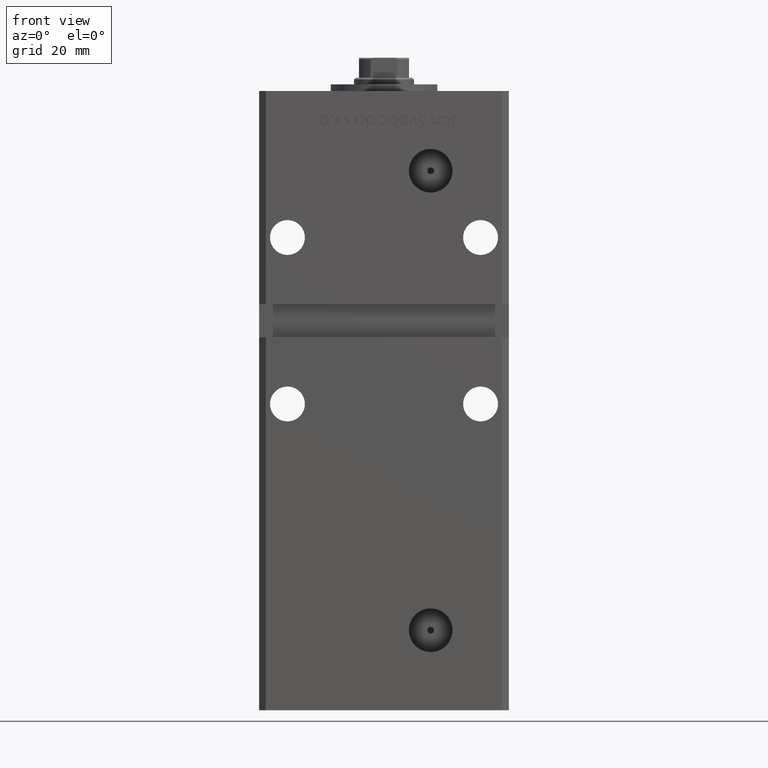
[diagram: clean part render]
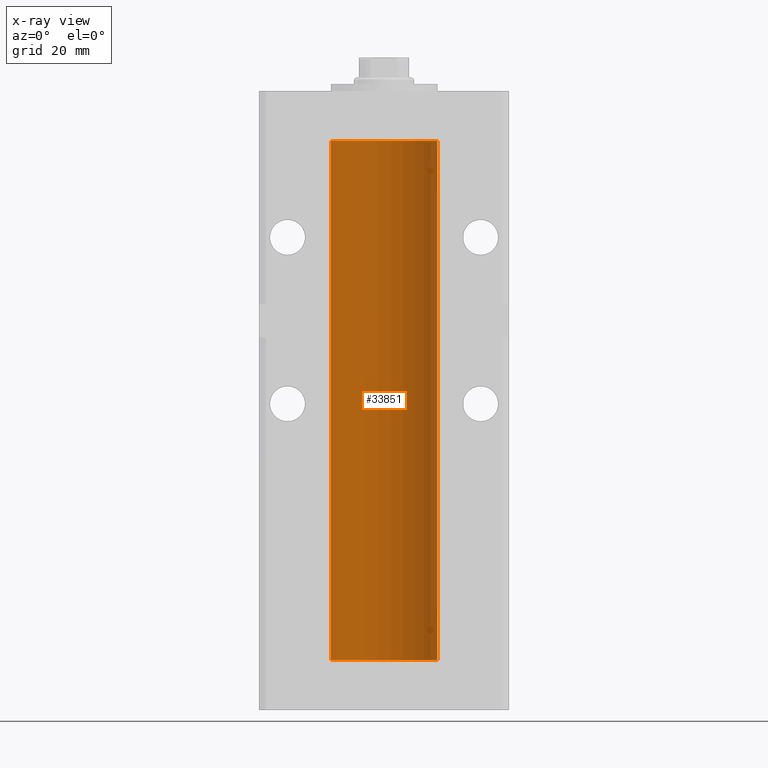
[diagram: x-ray — body ghosted, one internal face saturated and labeled with its STEP entity id]
A machine part, front view, then the same camera in x-ray: the body is ghosted and one INTERNAL B-rep face — a face not visible from any outside direction — is saturated and labeled: STEP entity #33851.
In plain terms, the highlighted cylindrical surface (partial cylindrical patch) has radius 16 mm, axis along (-0, -0, -1).
Its self-contained STEP definition (entity closure, byte-faithful):
#822 = ORIENTED_EDGE ( 'NONE', *, *, #46723, .T. ) ;
#871 = CIRCLE ( 'NONE', #30950, 16.00000000000000000 ) ;
#1381 = ORIENTED_EDGE ( 'NONE', *, *, #25730, .F. ) ;
#1564 = CARTESIAN_POINT ( 'NONE',  ( 0.000000000000000000, 0.000000000000000000, 156.0000000000000000 ) ) ;
#4519 = EDGE_LOOP ( 'NONE', ( #1381, #822, #22322, #4567 ) ) ;
#4567 = ORIENTED_EDGE ( 'NONE', *, *, #38587, .F. ) ;
#5629 = VERTEX_POINT ( 'NONE', #52095 ) ;
#6915 = DIRECTION ( 'NONE',  ( 1.000000000000000000, 0.000000000000000000, 0.000000000000000000 ) ) ;
#10921 = AXIS2_PLACEMENT_3D ( 'NONE', #36600, #52994, #48977 ) ;
#17702 = VERTEX_POINT ( 'NONE', #47608 ) ;
#18020 = DIRECTION ( 'NONE',  ( -0.000000000000000000, 0.000000000000000000, 1.000000000000000000 ) ) ;
#22256 = CIRCLE ( 'NONE', #41082, 16.00000000000000000 ) ;
#22322 = ORIENTED_EDGE ( 'NONE', *, *, #27123, .T. ) ;
#23739 = VERTEX_POINT ( 'NONE', #26802 ) ;
#25592 = FACE_OUTER_BOUND ( 'NONE', #4519, .T. ) ;
#25730 = EDGE_CURVE ( 'NONE', #17702, #5629, #26093, .T. ) ;
#25966 = CARTESIAN_POINT ( 'NONE',  ( -16.00000000000000000, 0.000000000000000000, 156.0000000000000000 ) ) ;
#26093 = LINE ( 'NONE', #34397, #28830 ) ;
#26263 = VERTEX_POINT ( 'NONE', #25966 ) ;
#26802 = CARTESIAN_POINT ( 'NONE',  ( -16.00000000000000000, 0.000000000000000000, 0.000000000000000000 ) ) ;
#27123 = EDGE_CURVE ( 'NONE', #26263, #23739, #50407, .T. ) ;
#28830 = VECTOR ( 'NONE', #34671, 1000.000000000000000 ) ;
#30950 = AXIS2_PLACEMENT_3D ( 'NONE', #1564, #18020, #50769 ) ;
#33851 = ADVANCED_FACE ( 'NONE', ( #25592 ), #41970, .F. ) ;
#34397 = CARTESIAN_POINT ( 'NONE',  ( 16.00000000000000000, 1.959434878635765131E-15, 156.0000000000000000 ) ) ;
#34671 = DIRECTION ( 'NONE',  ( -0.000000000000000000, -0.000000000000000000, -1.000000000000000000 ) ) ;
#36600 = CARTESIAN_POINT ( 'NONE',  ( 0.000000000000000000, 0.000000000000000000, 156.0000000000000000 ) ) ;
#38587 = EDGE_CURVE ( 'NONE', #5629, #23739, #22256, .T. ) ;
#40751 = VECTOR ( 'NONE', #49875, 1000.000000000000000 ) ;
#41082 = AXIS2_PLACEMENT_3D ( 'NONE', #43475, #51536, #6915 ) ;
#41970 = CYLINDRICAL_SURFACE ( 'NONE', #10921, 16.00000000000000000 ) ;
#43475 = CARTESIAN_POINT ( 'NONE',  ( 0.000000000000000000, 0.000000000000000000, 0.000000000000000000 ) ) ;
#46723 = EDGE_CURVE ( 'NONE', #17702, #26263, #871, .T. ) ;
#47608 = CARTESIAN_POINT ( 'NONE',  ( 16.00000000000000000, 1.959434878635765131E-15, 156.0000000000000000 ) ) ;
#48977 = DIRECTION ( 'NONE',  ( -1.000000000000000000, 0.000000000000000000, 0.000000000000000000 ) ) ;
#49875 = DIRECTION ( 'NONE',  ( -0.000000000000000000, -0.000000000000000000, -1.000000000000000000 ) ) ;
#50407 = LINE ( 'NONE', #50676, #40751 ) ;
#50676 = CARTESIAN_POINT ( 'NONE',  ( -16.00000000000000000, 0.000000000000000000, 156.0000000000000000 ) ) ;
#50769 = DIRECTION ( 'NONE',  ( 1.000000000000000000, 0.000000000000000000, 0.000000000000000000 ) ) ;
#51536 = DIRECTION ( 'NONE',  ( -0.000000000000000000, 0.000000000000000000, 1.000000000000000000 ) ) ;
#52095 = CARTESIAN_POINT ( 'NONE',  ( 16.00000000000000000, 1.959434878635765131E-15, 0.000000000000000000 ) ) ;
#52994 = DIRECTION ( 'NONE',  ( -0.000000000000000000, -0.000000000000000000, -1.000000000000000000 ) ) ;